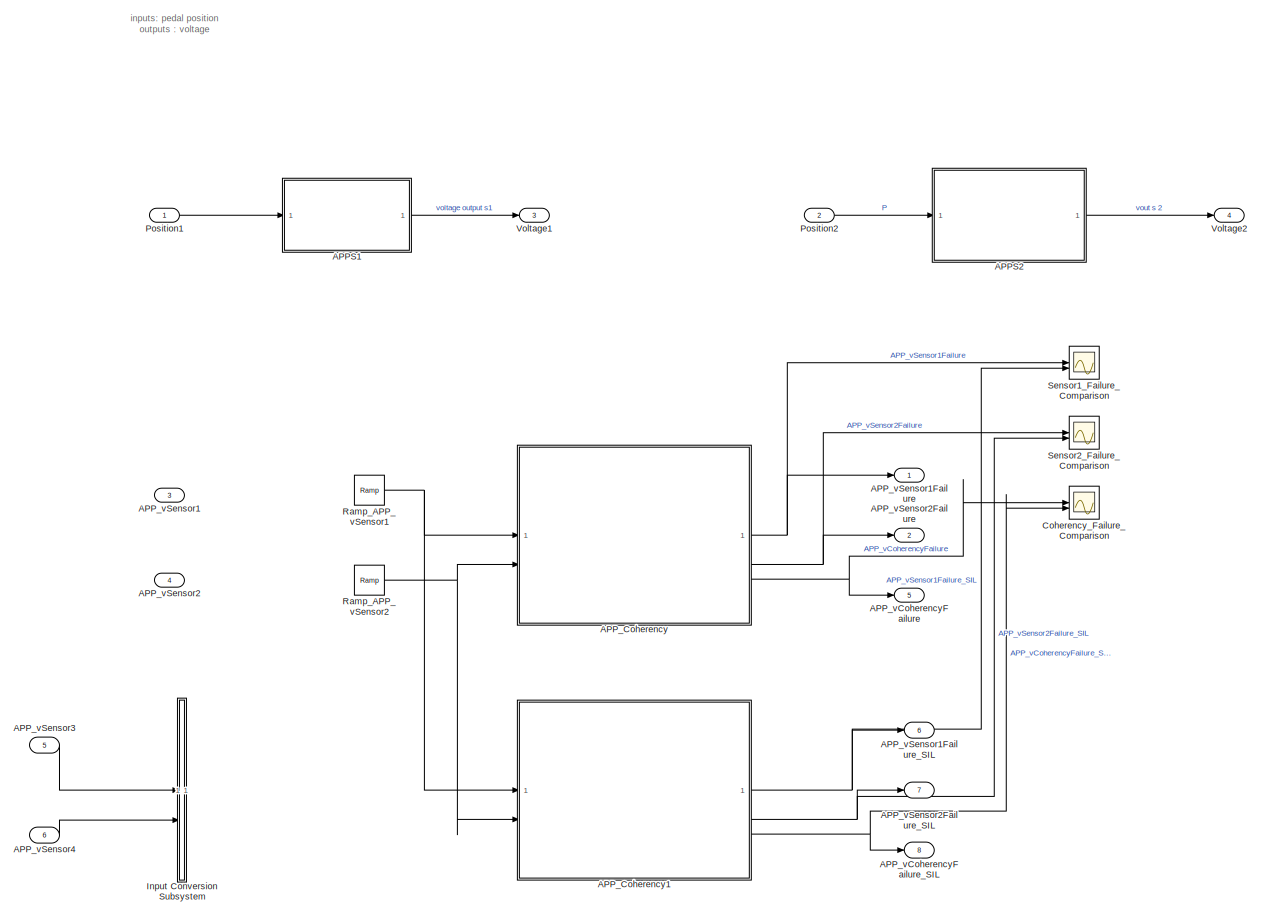
[diagram: root canvas - part 1/1, most of the canvas]
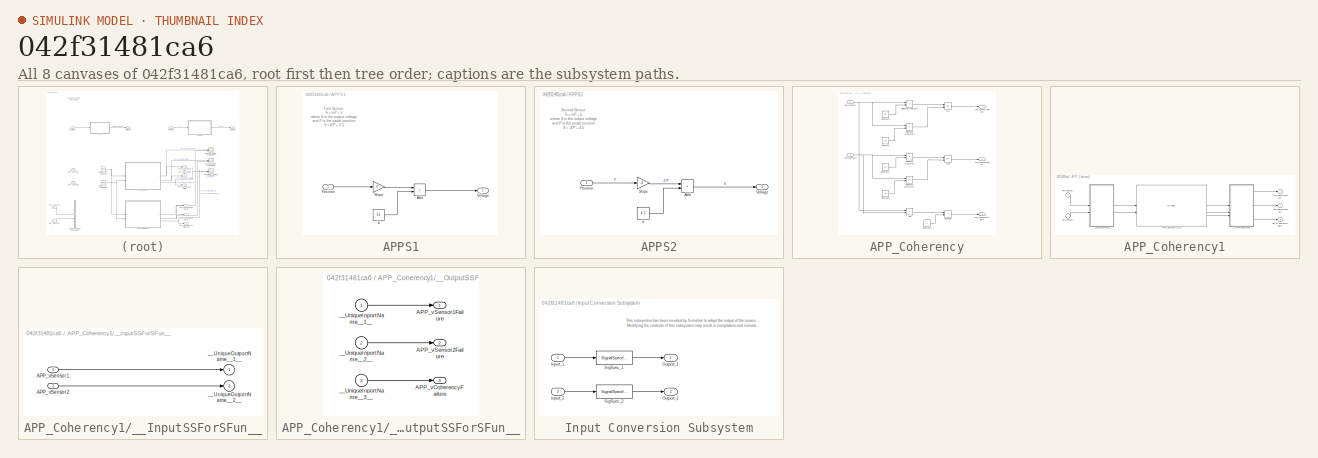
[diagram: thumbnail index - all 8 canvases of the model, root first then tree order]
MODEL slx_042f31481ca6
KIND model
CONFIG AbsTol = auto
CONFIG EnableMultiTasking = off
CONFIG FixedStep = 0.2
CONFIG MaxStep = auto
CONFIG MinStep = auto
CONFIG RelTol = 1e-3
CONFIG SampleTimeConstraint = Unconstrained
CONFIG SolverName = FixedStepDiscrete
CONFIG StartTime = 0.0
CONFIG StopTime = 1
BLOCK [SubSystem] APPS1
BLOCK [Sum] APPS1/Add
  IconShape = rectangular
BLOCK [Inport] APPS1/Position
BLOCK [Gain] APPS1/Slope
  Gain = 4
BLOCK [Outport] APPS1/Voltage
  VectorParamsAs1DForOutWhenUnconnected = off
BLOCK [Constant] APPS1/b 
  Value = 0.5
BLOCK [SubSystem] APPS2
BLOCK [Sum] APPS2/Add
  IconShape = rectangular
BLOCK [Inport] APPS2/Position
BLOCK [Gain] APPS2/Slope
  Gain = -4
BLOCK [Outport] APPS2/Voltage
  VectorParamsAs1DForOutWhenUnconnected = off
BLOCK [Constant] APPS2/b 
  Value = 4.5
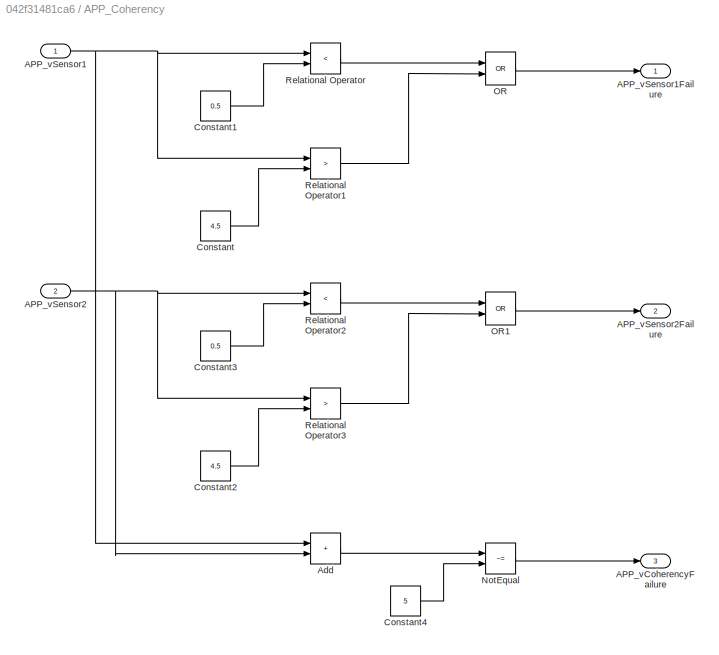
BLOCK [SubSystem] APP_Coherency
  TreatAsAtomicUnit = on
BLOCK [Outport] APP_Coherency/APP_vCoherencyFailure
  Port = 3
  VectorParamsAs1DForOutWhenUnconnected = off
BLOCK [Inport] APP_Coherency/APP_vSensor1
BLOCK [Outport] APP_Coherency/APP_vSensor1Failure
  VectorParamsAs1DForOutWhenUnconnected = off
BLOCK [Inport] APP_Coherency/APP_vSensor2
  Port = 2
BLOCK [Outport] APP_Coherency/APP_vSensor2Failure
  Port = 2
  VectorParamsAs1DForOutWhenUnconnected = off
BLOCK [Sum] APP_Coherency/Add
  IconShape = rectangular
BLOCK [Constant] APP_Coherency/Constant
  Value = 4.5
BLOCK [Constant] APP_Coherency/Constant1
  Value = 0.5
BLOCK [Constant] APP_Coherency/Constant2
  Value = 4.5
BLOCK [Constant] APP_Coherency/Constant3
  Value = 0.5
BLOCK [Constant] APP_Coherency/Constant4
  Value = 5
BLOCK [RelationalOperator] APP_Coherency/NotEqual
  InputSameDT = off
  Operator = ~=
  OutDataTypeStr = boolean
  RndMeth = Simplest
BLOCK [Logic] APP_Coherency/OR
  AllPortsSameDT = off
  Operator = OR
  OutDataTypeStr = boolean
BLOCK [Logic] APP_Coherency/OR1
  AllPortsSameDT = off
  Operator = OR
  OutDataTypeStr = boolean
BLOCK [RelationalOperator] APP_Coherency/Relational Operator
  InputSameDT = off
  Operator = <
  OutDataTypeStr = boolean
  RndMeth = Simplest
BLOCK [RelationalOperator] APP_Coherency/Relational Operator1
  InputSameDT = off
  Operator = >
  OutDataTypeStr = boolean
  RndMeth = Simplest
BLOCK [RelationalOperator] APP_Coherency/Relational Operator2
  InputSameDT = off
  Operator = <
  OutDataTypeStr = boolean
  RndMeth = Simplest
BLOCK [RelationalOperator] APP_Coherency/Relational Operator3
  InputSameDT = off
  Operator = >
  OutDataTypeStr = boolean
  RndMeth = Simplest
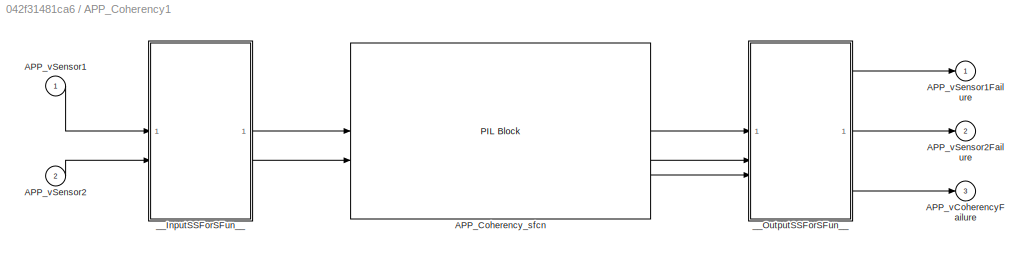
BLOCK [SubSystem] APP_Coherency1
  DialogController = pil_create_dialog
  LoadFcn = try\n   if ~strcmp(rtw.pil.getPILVersion, '9.13 (R2022b)_15')\n      set_param(gcb, 'DialogController', '');\n      set_param(gcb, 'DialogControllerArgs', '');\n   end\ncatch e\n      set_param(gcb, 'DialogController', '');\n      set_param(gcb, 'DialogControllerArgs', '');\nend
  Tag = __SL_testing_harness_stub_
BLOCK [Reference] APP_Coherency1/APP_Coherency_sfcn  REF=pil_lib/PIL Block
  SourceBlock = pil_lib/PIL Block
  SourceType = XILBlock
BLOCK [Outport] APP_Coherency1/APP_vCoherencyFailure
  Port = 3
  VectorParamsAs1DForOutWhenUnconnected = off
BLOCK [Inport] APP_Coherency1/APP_vSensor1
BLOCK [Outport] APP_Coherency1/APP_vSensor1Failure
  VectorParamsAs1DForOutWhenUnconnected = off
BLOCK [Inport] APP_Coherency1/APP_vSensor2
  Port = 2
BLOCK [Outport] APP_Coherency1/APP_vSensor2Failure
  Port = 2
  VectorParamsAs1DForOutWhenUnconnected = off
BLOCK [SubSystem] APP_Coherency1/__InputSSForSFun__
  PermitHierarchicalResolution = ExplicitOnly
BLOCK [Inport] APP_Coherency1/__InputSSForSFun__/APP_vSensor1
BLOCK [Inport] APP_Coherency1/__InputSSForSFun__/APP_vSensor2
  Port = 2
BLOCK [Outport] APP_Coherency1/__InputSSForSFun__/__UniqueOutportName__1__
BLOCK [Outport] APP_Coherency1/__InputSSForSFun__/__UniqueOutportName__2__
  Port = 2
BLOCK [SubSystem] APP_Coherency1/__OutputSSForSFun__
  PermitHierarchicalResolution = ExplicitOnly
BLOCK [Outport] APP_Coherency1/__OutputSSForSFun__/APP_vCoherencyFailure
  Port = 3
  VectorParamsAs1DForOutWhenUnconnected = off
BLOCK [Outport] APP_Coherency1/__OutputSSForSFun__/APP_vSensor1Failure
  VectorParamsAs1DForOutWhenUnconnected = off
BLOCK [Outport] APP_Coherency1/__OutputSSForSFun__/APP_vSensor2Failure
  Port = 2
  VectorParamsAs1DForOutWhenUnconnected = off
BLOCK [Inport] APP_Coherency1/__OutputSSForSFun__/__UniqueInportName__1__
BLOCK [Inport] APP_Coherency1/__OutputSSForSFun__/__UniqueInportName__2__
  Port = 2
BLOCK [Inport] APP_Coherency1/__OutputSSForSFun__/__UniqueInportName__3__
  Port = 3
BLOCK [Outport] APP_vCoherencyFailure
  Port = 5
  VectorParamsAs1DForOutWhenUnconnected = off
BLOCK [Outport] APP_vCoherencyFailure_SIL
  Port = 8
BLOCK [Inport] APP_vSensor1
  Port = 3
BLOCK [Outport] APP_vSensor1Failure
  VectorParamsAs1DForOutWhenUnconnected = off
BLOCK [Outport] APP_vSensor1Failure_SIL
  Port = 6
BLOCK [Inport] APP_vSensor2
  Port = 4
BLOCK [Outport] APP_vSensor2Failure
  Port = 2
  VectorParamsAs1DForOutWhenUnconnected = off
BLOCK [Outport] APP_vSensor2Failure_SIL
  Port = 7
BLOCK [Inport] APP_vSensor3
  OutDataTypeStr = double
  Port = 5
  PortDimensions = [1]
  SampleTime = 0.2
  SignalType = real
  VarSizeSig = No
BLOCK [Inport] APP_vSensor4
  OutDataTypeStr = double
  Port = 6
  PortDimensions = [1]
  SampleTime = 0.2
  SignalType = real
  VarSizeSig = No
BLOCK [Scope] Coherency_Failure_Comparison
  Floating = off
  NumInputPorts = 2
  ScopeSpecificationString = Simulink.scopes.TimeScopeBlockCfg('CurrentConfiguration', extmgr.ConfigurationSet(extmgr.Configuration('Core','General UI',true),extmgr.Configuration('Core','Source UI',true),extmgr.Configuration('Sources','WiredSimulink',true,'DataLoggingVariableName','ScopeData2'),extmgr.Configuration('Visuals','Time Domain',true,'SerializedDisplays',{struct('MinYLimReal','-0.125','MaxYLimReal','1.125','YLabelRe...<+2060ch>
BLOCK [SubSystem] Input Conversion Subsystem
  AttributesFormatString = %<Description>
  Description = Signal spec.\nand routing
  Permissions = ReadOnly
  PermitHierarchicalResolution = ExplicitOnly
  Tag = __SLT_ICS__
  TreatAsGroupedWhenPropagatingVariantConditions = off
  UserDataPersistent = on
BLOCK [Inport] Input Conversion Subsystem/Inport_1
BLOCK [Inport] Input Conversion Subsystem/Inport_2
  Port = 2
BLOCK [Outport] Input Conversion Subsystem/Outport_1
BLOCK [Outport] Input Conversion Subsystem/Outport_2
  Port = 2
BLOCK [SignalSpecification] Input Conversion Subsystem/SigSpec_1
  Dimensions = [1]
  OutDataTypeStr = double
  SampleTime = 0.2
  SignalType = real
  VarSizeSig = No
BLOCK [SignalSpecification] Input Conversion Subsystem/SigSpec_2
  Dimensions = [1]
  OutDataTypeStr = double
  SampleTime = 0.2
  SignalType = real
  VarSizeSig = No
BLOCK [Inport] Position1
BLOCK [Inport] Position2
  Port = 2
BLOCK [Reference] Ramp_APP_vSensor1  REF=simulink/Sources/Ramp
  SourceBlock = simulink/Sources/Ramp
  SourceType = Ramp
BLOCK [Reference] Ramp_APP_vSensor2  REF=simulink/Sources/Ramp
  SourceBlock = simulink/Sources/Ramp
  SourceType = Ramp
BLOCK [Scope] Sensor1_Failure_Comparison
  Floating = off
  NumInputPorts = 2
  ScopeSpecificationString = Simulink.scopes.TimeScopeBlockCfg('CurrentConfiguration', extmgr.ConfigurationSet(extmgr.Configuration('Core','General UI',true),extmgr.Configuration('Core','Source UI',true),extmgr.Configuration('Sources','WiredSimulink',true),extmgr.Configuration('Visuals','Time Domain',true,'SerializedDisplays',{struct('MinYLimReal','-0.125','MaxYLimReal','1.125','YLabelReal','','MinYLimMag','0.00000','MaxYLimM...<+1991ch>
BLOCK [Scope] Sensor2_Failure_Comparison
  Floating = off
  NumInputPorts = 2
  ScopeSpecificationString = Simulink.scopes.TimeScopeBlockCfg('CurrentConfiguration', extmgr.ConfigurationSet(extmgr.Configuration('Core','General UI',true),extmgr.Configuration('Core','Source UI',true),extmgr.Configuration('Sources','WiredSimulink',true,'DataLoggingVariableName','ScopeData1'),extmgr.Configuration('Visuals','Time Domain',true,'SerializedDisplays',{struct('MinYLimReal','-1.00000','MaxYLimReal','1.00000','YLab...<+2065ch>
BLOCK [Outport] Voltage1
  Port = 3
  VectorParamsAs1DForOutWhenUnconnected = off
BLOCK [Outport] Voltage2
  Port = 4
  VectorParamsAs1DForOutWhenUnconnected = off
ANNOTATION (root): inputs: pedal position outputs : voltage
ANNOTATION APPS1: First Sensor: S = mP + b where S is the output voltage and P is the pedal position S = 4*P + 0.5
ANNOTATION APPS2: Second Sensor: S = mP + b where S is the output voltage and P is the pedal position S = -4*P + 4.5
ANNOTATION Input Conversion Subsystem: This subsystem has been inserted by Simulink to adapt the output of the source blocks to the interface required by the harnessed component. Modifying the contents of this subsystem may result in compilation and simulation failure.
LINE APPS1/Add:1 -> APPS1/Voltage:1
LINE APPS1/Position:1 -> APPS1/Slope:1
LINE APPS1/Slope:1 -> APPS1/Add:1
LINE APPS1/b :1 -> APPS1/Add:2
LINE APPS1:1 -> Voltage1:1
LINE APPS2/Add:1 -> APPS2/Voltage:1
LINE APPS2/Position:1 -> APPS2/Slope:1
LINE APPS2/Slope:1 -> APPS2/Add:1
LINE APPS2/b :1 -> APPS2/Add:2
LINE APPS2:1 -> Voltage2:1
NET APP_Coherency/APP_vSensor1:1 -> APP_Coherency/Add:1, APP_Coherency/Relational Operator1:1, APP_Coherency/Relational Operator:1
NET APP_Coherency/APP_vSensor2:1 -> APP_Coherency/Add:2, APP_Coherency/Relational Operator2:1, APP_Coherency/Relational Operator3:1
LINE APP_Coherency/Add:1 -> APP_Coherency/NotEqual:1
LINE APP_Coherency/Constant1:1 -> APP_Coherency/Relational Operator:2
LINE APP_Coherency/Constant2:1 -> APP_Coherency/Relational Operator3:2
LINE APP_Coherency/Constant3:1 -> APP_Coherency/Relational Operator2:2
LINE APP_Coherency/Constant4:1 -> APP_Coherency/NotEqual:2
LINE APP_Coherency/Constant:1 -> APP_Coherency/Relational Operator1:2
LINE APP_Coherency/NotEqual:1 -> APP_Coherency/APP_vCoherencyFailure:1
LINE APP_Coherency/OR1:1 -> APP_Coherency/APP_vSensor2Failure:1
LINE APP_Coherency/OR:1 -> APP_Coherency/APP_vSensor1Failure:1
LINE APP_Coherency/Relational Operator1:1 -> APP_Coherency/OR:2
LINE APP_Coherency/Relational Operator2:1 -> APP_Coherency/OR1:1
LINE APP_Coherency/Relational Operator3:1 -> APP_Coherency/OR1:2
LINE APP_Coherency/Relational Operator:1 -> APP_Coherency/OR:1
NET APP_Coherency1:1 -> APP_vSensor1Failure_SIL:1, Sensor1_Failure_Comparison:2
NET APP_Coherency1:2 -> APP_vSensor2Failure_SIL:1, Sensor2_Failure_Comparison:2
NET APP_Coherency1:3 -> APP_vCoherencyFailure_SIL:1, Coherency_Failure_Comparison:2
NET APP_Coherency:1 -> APP_vSensor1Failure:1, Sensor1_Failure_Comparison:1
NET APP_Coherency:2 -> APP_vSensor2Failure:1, Sensor2_Failure_Comparison:1
NET APP_Coherency:3 -> APP_vCoherencyFailure:1, Coherency_Failure_Comparison:1
LINE APP_vSensor3:1 -> Input Conversion Subsystem:1
LINE APP_vSensor4:1 -> Input Conversion Subsystem:2
LINE Input Conversion Subsystem/Inport_1:1 -> Input Conversion Subsystem/SigSpec_1:1
LINE Input Conversion Subsystem/Inport_2:1 -> Input Conversion Subsystem/SigSpec_2:1
LINE Input Conversion Subsystem/SigSpec_1:1 -> Input Conversion Subsystem/Outport_1:1
LINE Input Conversion Subsystem/SigSpec_2:1 -> Input Conversion Subsystem/Outport_2:1
LINE Position1:1 -> APPS1:1
LINE Position2:1 -> APPS2:1
NET Ramp_APP_vSensor1:1 -> APP_Coherency1:1, APP_Coherency:1
NET Ramp_APP_vSensor2:1 -> APP_Coherency1:2, APP_Coherency:2
note: NET lines group one-source signal fan-out (src -> all destinations, sorted); 1:1 wires keep LINE
